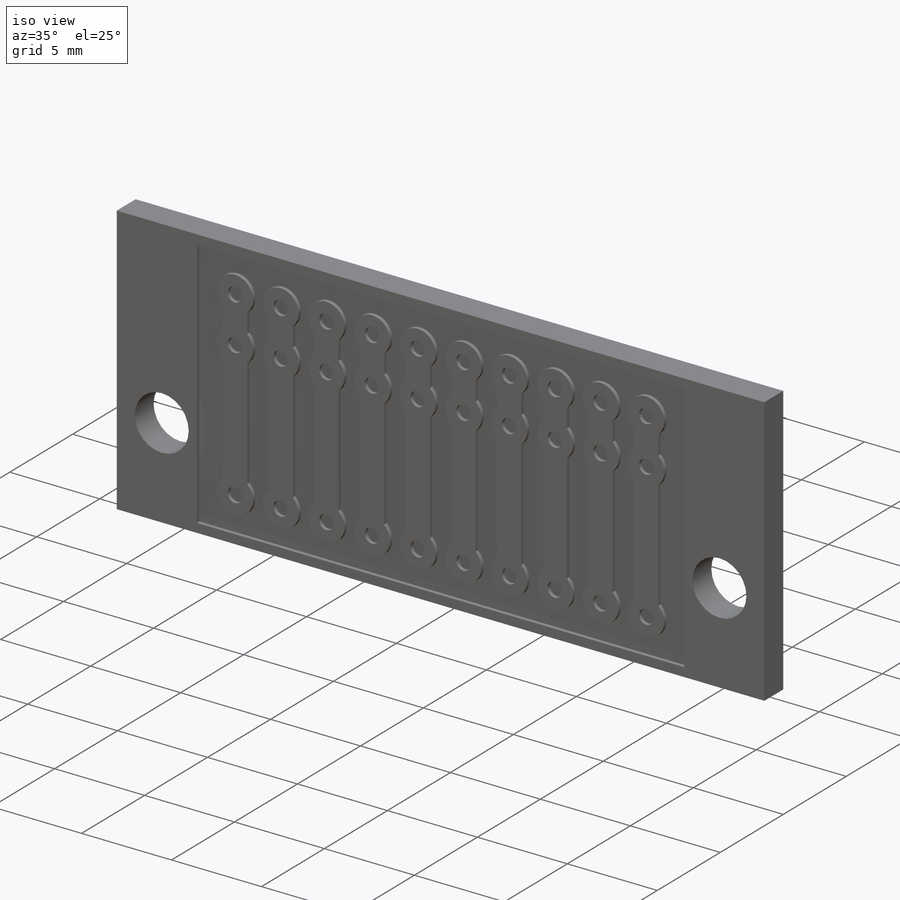
[diagram: iso view]
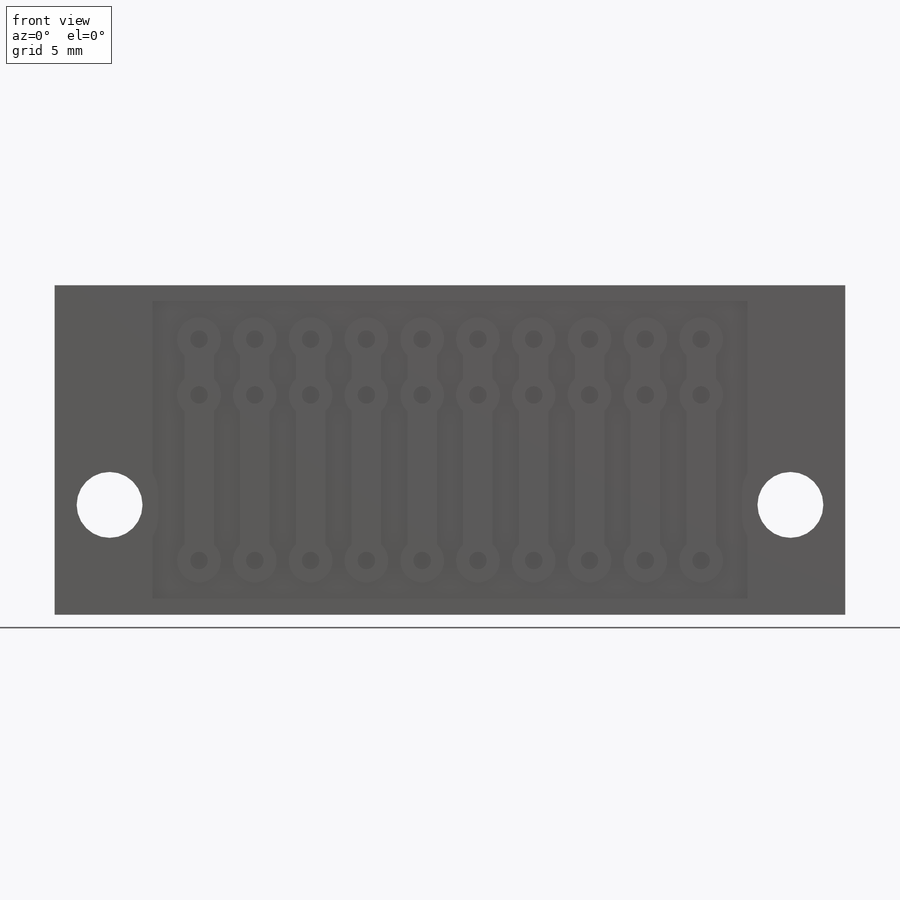
[diagram: front view]
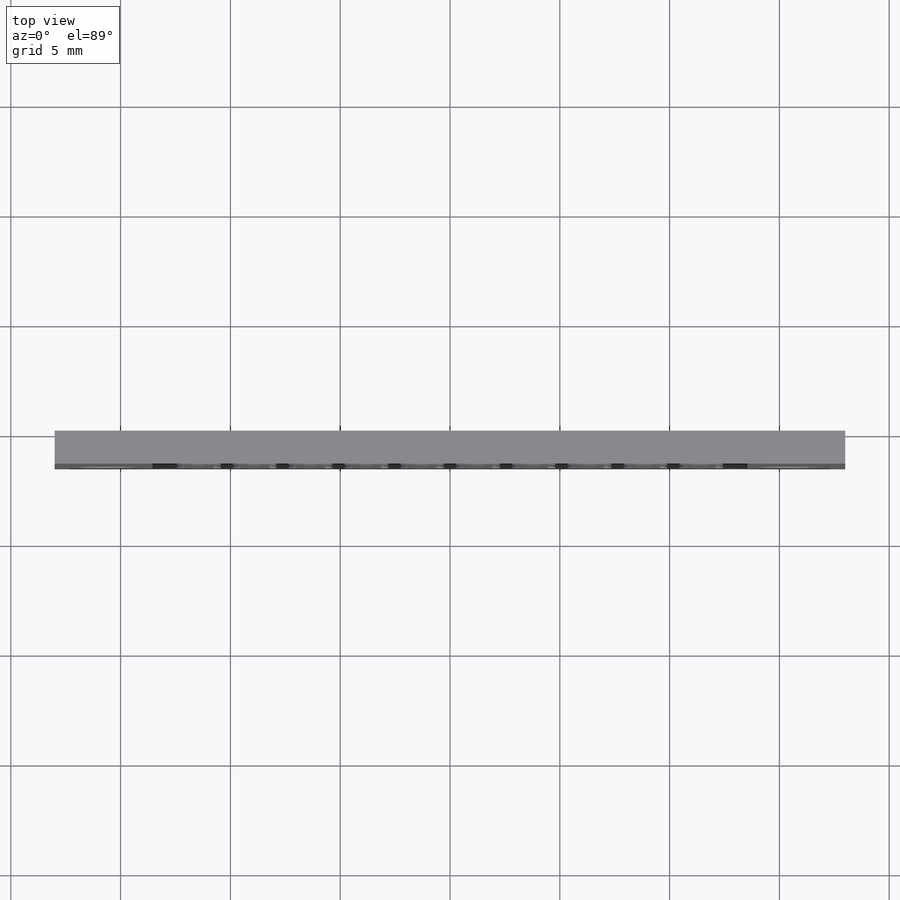
[diagram: top view]
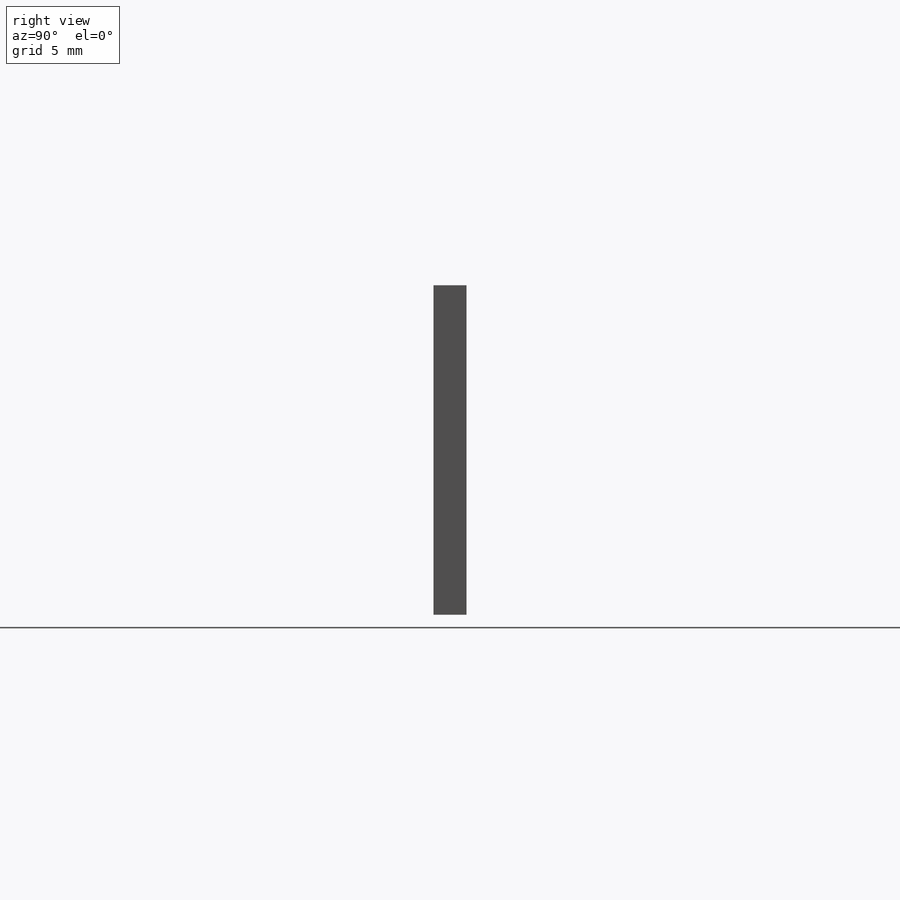
[diagram: right view]
SOLIDWORKS PART (.sldprt)
format: sldprt  version: not decoded by parser v0  size: 436,736 bytes
history: native  units: mm
features: sketch x4, cut_extrude x3, material x1, extrude x1 (+16 scaffold rows collapsed)
feature tree (25):
  scaffold x16  (default folders/planes/origin — collapsed)
  material  "Material <not specified>"
  sketch  "Sketch1"  dims[c1.D1=~0.49432mm c1.D3=10.0mm c2.D1=15.0mm]
  extrude  "Boss-Extrude3"  Depth=1.5mm
  sketch  "Sketch3"  dims[D3=0.5mm D4=27.0975mm D1=5.0 D2=6.0]
  cut_extrude  "Cut-Extrude1"  Depth=0.2mm
  sketch  "Sketch5"  dims[c1.D1=15.5mm c1.D2=15.5mm c1.D3=7.5mm c2.D1=5.0mm c2.D2=5.0mm]
  cut_extrude  "Cut-Extrude3"  Depth=10.2mm
  sketch  "Sketch6"  dims[c1.D1=~0.530492mm c2.D1=10.0]
  cut_extrude  "Cut-Extrude4"  Depth=0.2mm
decode coverage: 8 of 8 modeling features carry decoded parameters
note: ~ marks probable driven/reference dimensions
note: suppression state not decoded; provenance and decode notes live in map.json
